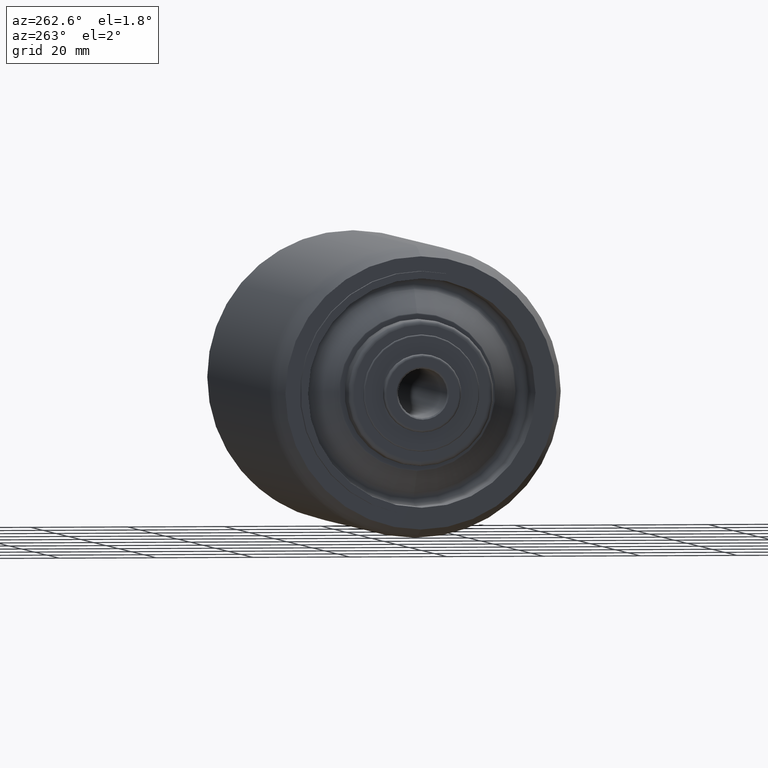
[diagram: clean part render]
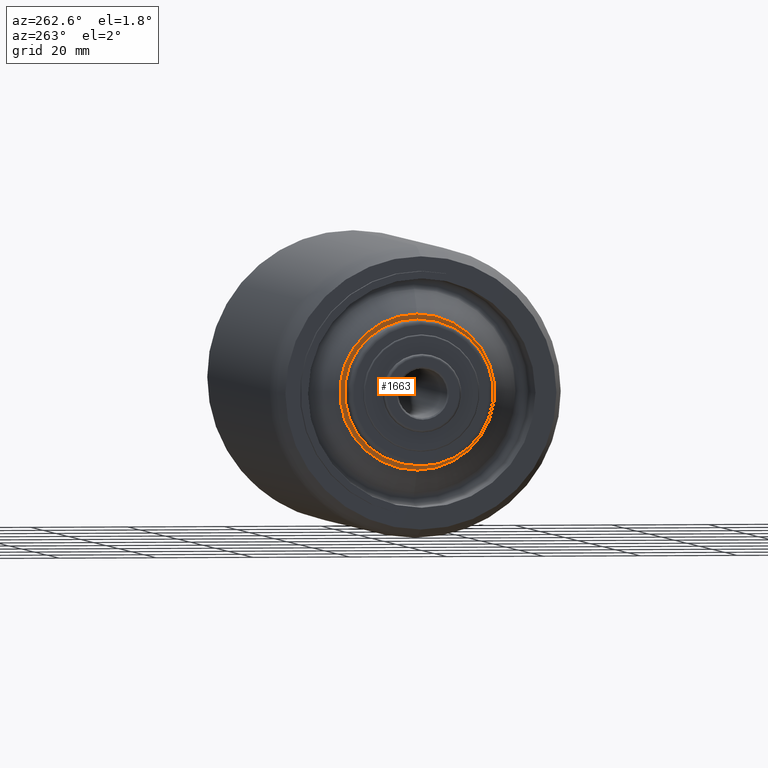
[diagram: same view with one face highlighted and labeled with its STEP entity id]
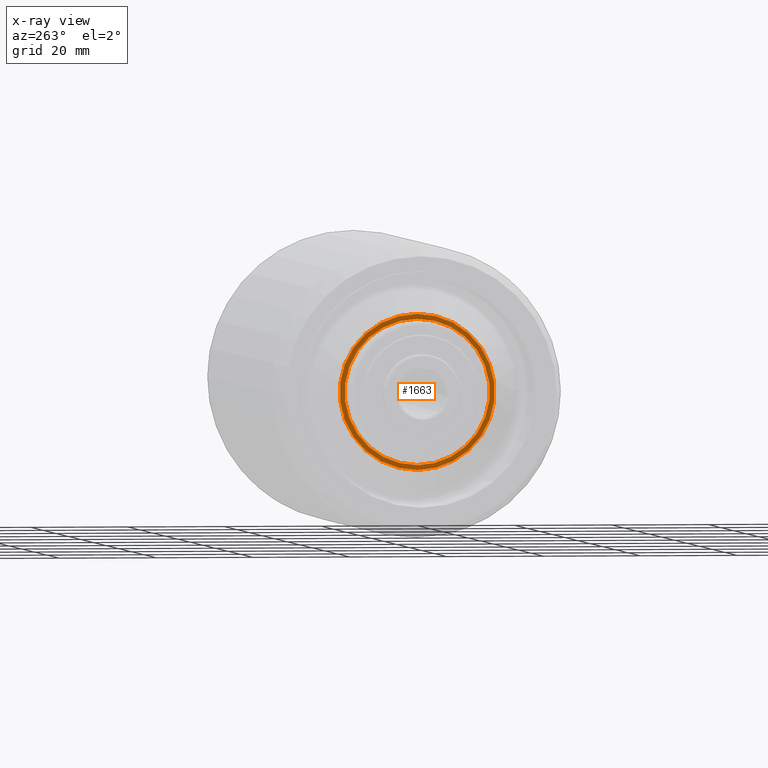
[diagram: x-ray of the same camera — body ghosted, the highlighted face saturated]
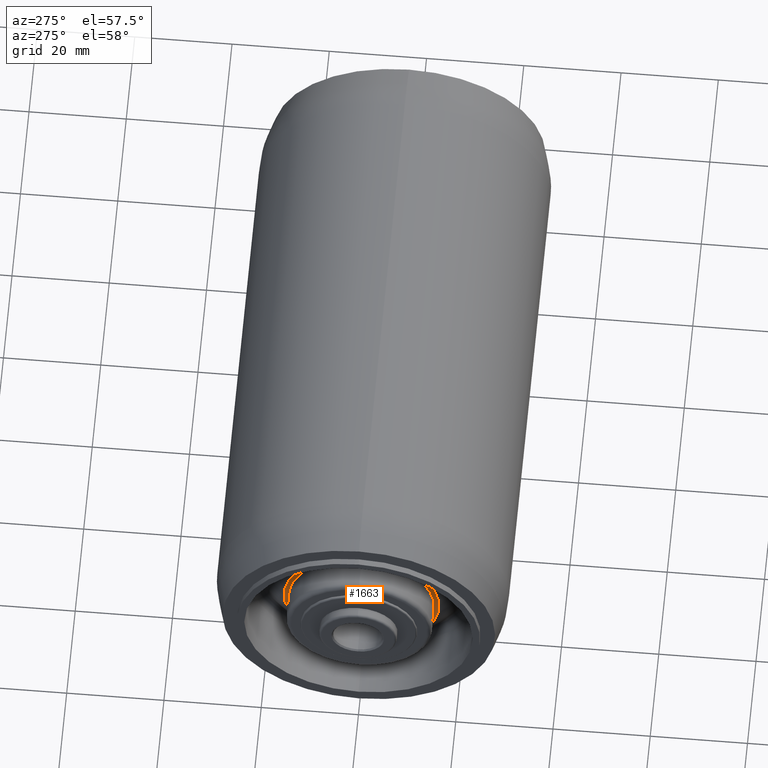
[diagram: same view with one face highlighted and labeled with its STEP entity id]
A machine part, auxiliary view. The second image highlights one B-rep face of the part: STEP entity #1663.
The next image is the same camera in x-ray: the body ghosted, the highlighted face saturated — about 0% of this face is hidden behind the body in this view.
A second angle (auxiliary view) of the same face is appended — the face is thin or edge-on in the first view.
In plain terms, the highlighted planar face has unit normal (1, 0, 0).
Its self-contained STEP definition (entity closure, byte-faithful):
#1 = CARTESIAN_POINT ( 'NONE',  ( -52.75000000000000000, 0.0000000000000000000, 0.0000000000000000000 ) ) ;
#82 = CARTESIAN_POINT ( 'NONE',  ( -52.75000000000000000, 0.0000000000000000000, 16.00000000000000000 ) ) ;
#137 = ORIENTED_EDGE ( 'NONE', *, *, #820, .F. ) ;
#198 = DIRECTION ( 'NONE',  ( 0.0000000000000000000, 0.0000000000000000000, 1.000000000000000000 ) ) ;
#332 = CARTESIAN_POINT ( 'NONE',  ( -52.75000000000000000, 0.0000000000000000000, 0.0000000000000000000 ) ) ;
#337 = CARTESIAN_POINT ( 'NONE',  ( -52.75000000000000000, 0.0000000000000000000, 0.0000000000000000000 ) ) ;
#391 = ORIENTED_EDGE ( 'NONE', *, *, #1334, .T. ) ;
#419 = VERTEX_POINT ( 'NONE', #492 ) ;
#446 = DIRECTION ( 'NONE',  ( 1.000000000000000000, 0.0000000000000000000, 0.0000000000000000000 ) ) ;
#459 = DIRECTION ( 'NONE',  ( 0.0000000000000000000, 0.0000000000000000000, 1.000000000000000000 ) ) ;
#478 = CIRCLE ( 'NONE', #1621, 15.00000000000000000 ) ;
#482 = DIRECTION ( 'NONE',  ( -1.000000000000000000, -0.0000000000000000000, -0.0000000000000000000 ) ) ;
#492 = CARTESIAN_POINT ( 'NONE',  ( -52.75000000000000000, 1.972885781494965931E-15, -16.00000000000000000 ) ) ;
#527 = CIRCLE ( 'NONE', #579, 15.00000000000000000 ) ;
#545 = PLANE ( 'NONE',  #1577 ) ;
#579 = AXIS2_PLACEMENT_3D ( 'NONE', #337, #937, #1103 ) ;
#690 = ORIENTED_EDGE ( 'NONE', *, *, #884, .T. ) ;
#700 = ORIENTED_EDGE ( 'NONE', *, *, #722, .F. ) ;
#722 = EDGE_CURVE ( 'NONE', #856, #1868, #478, .T. ) ;
#739 = EDGE_LOOP ( 'NONE', ( #391, #690 ) ) ;
#770 = DIRECTION ( 'NONE',  ( -1.000000000000000000, -0.0000000000000000000, -0.0000000000000000000 ) ) ;
#794 = DIRECTION ( 'NONE',  ( -1.000000000000000000, -0.0000000000000000000, -0.0000000000000000000 ) ) ;
#820 = EDGE_CURVE ( 'NONE', #1868, #856, #527, .T. ) ;
#856 = VERTEX_POINT ( 'NONE', #1228 ) ;
#884 = EDGE_CURVE ( 'NONE', #419, #1011, #1906, .T. ) ;
#928 = AXIS2_PLACEMENT_3D ( 'NONE', #332, #794, #198 ) ;
#937 = DIRECTION ( 'NONE',  ( -1.000000000000000000, -0.0000000000000000000, -0.0000000000000000000 ) ) ;
#943 = CARTESIAN_POINT ( 'NONE',  ( -52.75000000000000000, 0.0000000000000000000, 0.0000000000000000000 ) ) ;
#1011 = VERTEX_POINT ( 'NONE', #82 ) ;
#1103 = DIRECTION ( 'NONE',  ( 0.0000000000000000000, 0.0000000000000000000, 1.000000000000000000 ) ) ;
#1153 = CARTESIAN_POINT ( 'NONE',  ( -52.75000000000000000, 0.0000000000000000000, 15.00000000000000000 ) ) ;
#1228 = CARTESIAN_POINT ( 'NONE',  ( -52.75000000000000000, 1.836970198721029589E-15, -15.00000000000000000 ) ) ;
#1328 = CIRCLE ( 'NONE', #928, 16.00000000000000000 ) ;
#1334 = EDGE_CURVE ( 'NONE', #1011, #419, #1328, .T. ) ;
#1562 = DIRECTION ( 'NONE',  ( 0.0000000000000000000, 0.0000000000000000000, -1.000000000000000000 ) ) ;
#1577 = AXIS2_PLACEMENT_3D ( 'NONE', #1758, #446, #1562 ) ;
#1621 = AXIS2_PLACEMENT_3D ( 'NONE', #1, #770, #459 ) ;
#1633 = FACE_OUTER_BOUND ( 'NONE', #739, .T. ) ;
#1662 = EDGE_LOOP ( 'NONE', ( #137, #700 ) ) ;
#1663 = ADVANCED_FACE ( 'NONE', ( #1690, #1633 ), #545, .F. ) ;
#1690 = FACE_BOUND ( 'NONE', #1662, .T. ) ;
#1706 = AXIS2_PLACEMENT_3D ( 'NONE', #943, #482, #1825 ) ;
#1758 = CARTESIAN_POINT ( 'NONE',  ( -52.75000000000000000, 16.00000000000000000, 0.0000000000000000000 ) ) ;
#1825 = DIRECTION ( 'NONE',  ( 0.0000000000000000000, 0.0000000000000000000, 1.000000000000000000 ) ) ;
#1868 = VERTEX_POINT ( 'NONE', #1153 ) ;
#1906 = CIRCLE ( 'NONE', #1706, 16.00000000000000000 ) ;